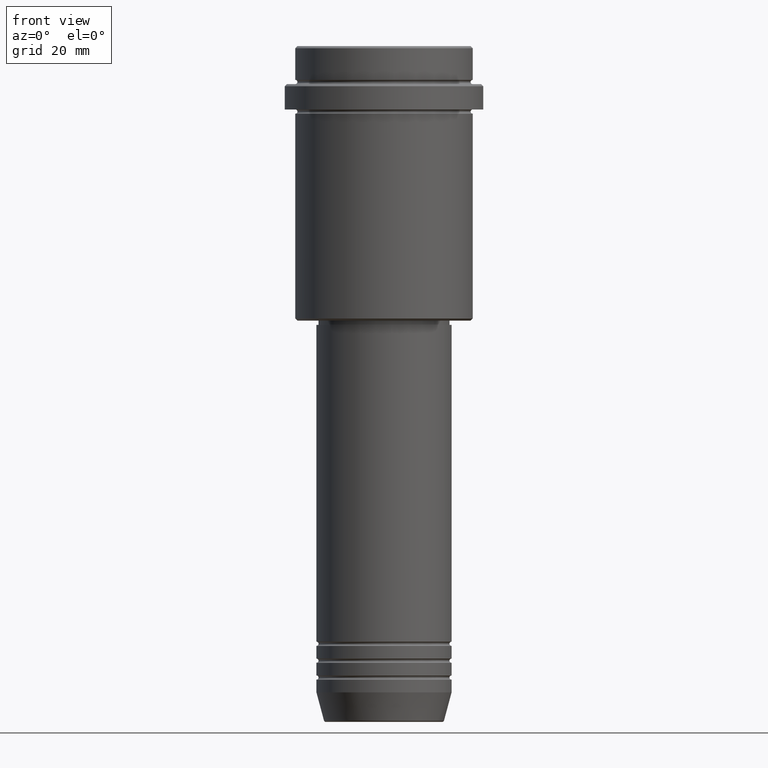
[diagram: clean part render]
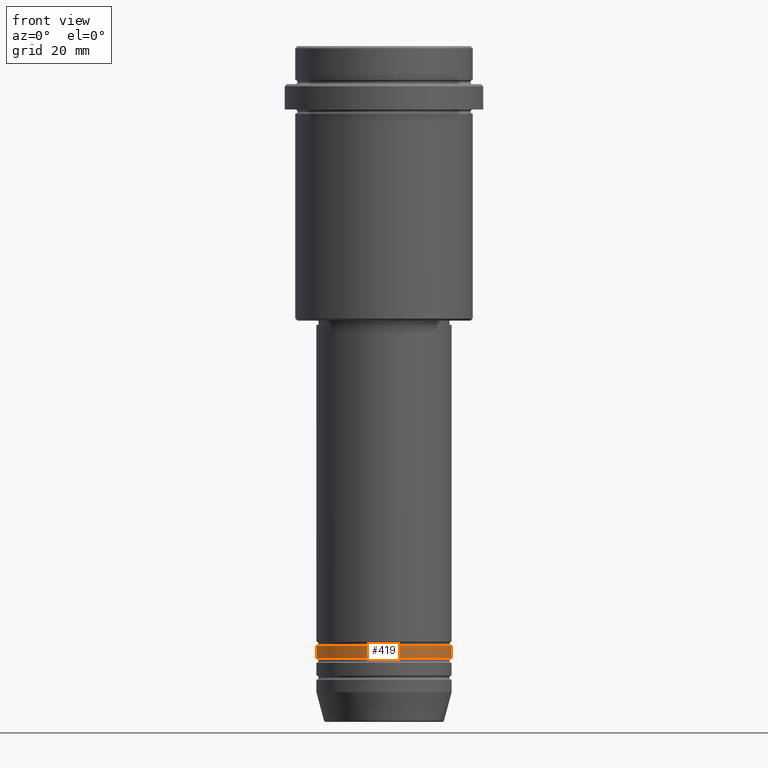
[diagram: same view with one face highlighted and labeled with its STEP entity id]
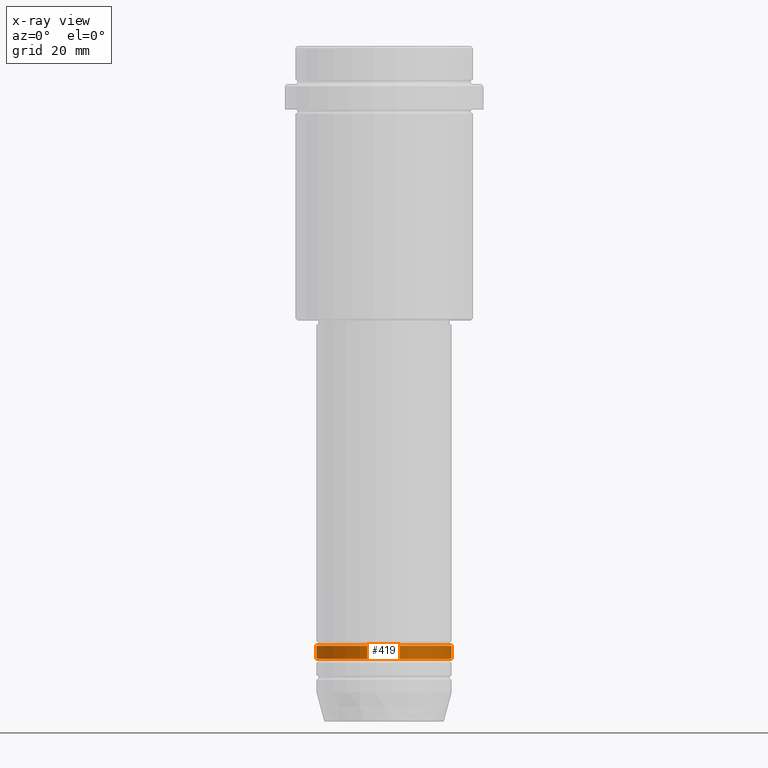
[diagram: x-ray of the same camera — body ghosted, the highlighted face saturated]
A machine part, front view. The second image highlights one B-rep face of the part: STEP entity #419.
The next image is the same camera in x-ray: the body ghosted, the highlighted face saturated — about 0% of this face is hidden behind the body in this view.
In plain terms, the highlighted cylindrical surface (partial cylindrical patch) has radius 16 mm, axis along (-0, -0, 1).
Its self-contained STEP definition (entity closure, byte-faithful):
#19 = EDGE_CURVE ( 'NONE', #564, #1221, #1029, .T. ) ;
#38 = DIRECTION ( 'NONE',  ( 1.000000000000000000, 0.000000000000000000, 0.000000000000000000 ) ) ;
#40 = DIRECTION ( 'NONE',  ( 1.000000000000000000, 0.000000000000000000, 0.000000000000000000 ) ) ;
#51 = CARTESIAN_POINT ( 'NONE',  ( 16.00000000000000000, 0.000000000000000000, 0.000000000000000000 ) ) ;
#138 = DIRECTION ( 'NONE',  ( -0.000000000000000000, -0.000000000000000000, 1.000000000000000000 ) ) ;
#163 = DIRECTION ( 'NONE',  ( 1.000000000000000000, 0.000000000000000000, 0.000000000000000000 ) ) ;
#254 = DIRECTION ( 'NONE',  ( -0.000000000000000000, -0.000000000000000000, 1.000000000000000000 ) ) ;
#288 = CARTESIAN_POINT ( 'NONE',  ( -16.00000000000000000, 1.959434878635765131E-15, 0.000000000000000000 ) ) ;
#292 = ORIENTED_EDGE ( 'NONE', *, *, #412, .F. ) ;
#346 = VECTOR ( 'NONE', #138, 1000.000000000000000 ) ;
#373 = CARTESIAN_POINT ( 'NONE',  ( -16.00000000000000000, 1.959434878635765131E-15, -141.9999999999999147 ) ) ;
#377 = AXIS2_PLACEMENT_3D ( 'NONE', #676, #1017, #40 ) ;
#381 = CARTESIAN_POINT ( 'NONE',  ( 16.00000000000000000, 0.000000000000000000, -141.9999999999999147 ) ) ;
#412 = EDGE_CURVE ( 'NONE', #1106, #453, #1231, .T. ) ;
#414 = CARTESIAN_POINT ( 'NONE',  ( 16.00000000000000000, 0.000000000000000000, -144.9999999999999147 ) ) ;
#419 = ADVANCED_FACE ( 'NONE', ( #823 ), #1249, .T. ) ;
#453 = VERTEX_POINT ( 'NONE', #373 ) ;
#489 = DIRECTION ( 'NONE',  ( -0.000000000000000000, -0.000000000000000000, 1.000000000000000000 ) ) ;
#552 = AXIS2_PLACEMENT_3D ( 'NONE', #1139, #254, #163 ) ;
#564 = VERTEX_POINT ( 'NONE', #414 ) ;
#588 = ORIENTED_EDGE ( 'NONE', *, *, #1306, .T. ) ;
#610 = DIRECTION ( 'NONE',  ( -0.000000000000000000, -0.000000000000000000, 1.000000000000000000 ) ) ;
#618 = ORIENTED_EDGE ( 'NONE', *, *, #1181, .F. ) ;
#676 = CARTESIAN_POINT ( 'NONE',  ( 0.000000000000000000, 0.000000000000000000, -144.9999999999999147 ) ) ;
#707 = ORIENTED_EDGE ( 'NONE', *, *, #19, .T. ) ;
#823 = FACE_OUTER_BOUND ( 'NONE', #1267, .T. ) ;
#898 = CIRCLE ( 'NONE', #1408, 16.00000000000000000 ) ;
#912 = CARTESIAN_POINT ( 'NONE',  ( -16.00000000000000000, 1.959434878635765131E-15, -144.9999999999999147 ) ) ;
#990 = CIRCLE ( 'NONE', #377, 16.00000000000000000 ) ;
#1017 = DIRECTION ( 'NONE',  ( -0.000000000000000000, -0.000000000000000000, 1.000000000000000000 ) ) ;
#1029 = LINE ( 'NONE', #51, #1352 ) ;
#1106 = VERTEX_POINT ( 'NONE', #912 ) ;
#1139 = CARTESIAN_POINT ( 'NONE',  ( 0.000000000000000000, 0.000000000000000000, 0.000000000000000000 ) ) ;
#1181 = EDGE_CURVE ( 'NONE', #453, #1221, #898, .T. ) ;
#1221 = VERTEX_POINT ( 'NONE', #381 ) ;
#1231 = LINE ( 'NONE', #288, #346 ) ;
#1241 = CARTESIAN_POINT ( 'NONE',  ( 0.000000000000000000, 0.000000000000000000, -141.9999999999999147 ) ) ;
#1249 = CYLINDRICAL_SURFACE ( 'NONE', #552, 16.00000000000000000 ) ;
#1267 = EDGE_LOOP ( 'NONE', ( #292, #588, #707, #618 ) ) ;
#1306 = EDGE_CURVE ( 'NONE', #1106, #564, #990, .T. ) ;
#1352 = VECTOR ( 'NONE', #489, 1000.000000000000000 ) ;
#1408 = AXIS2_PLACEMENT_3D ( 'NONE', #1241, #610, #38 ) ;